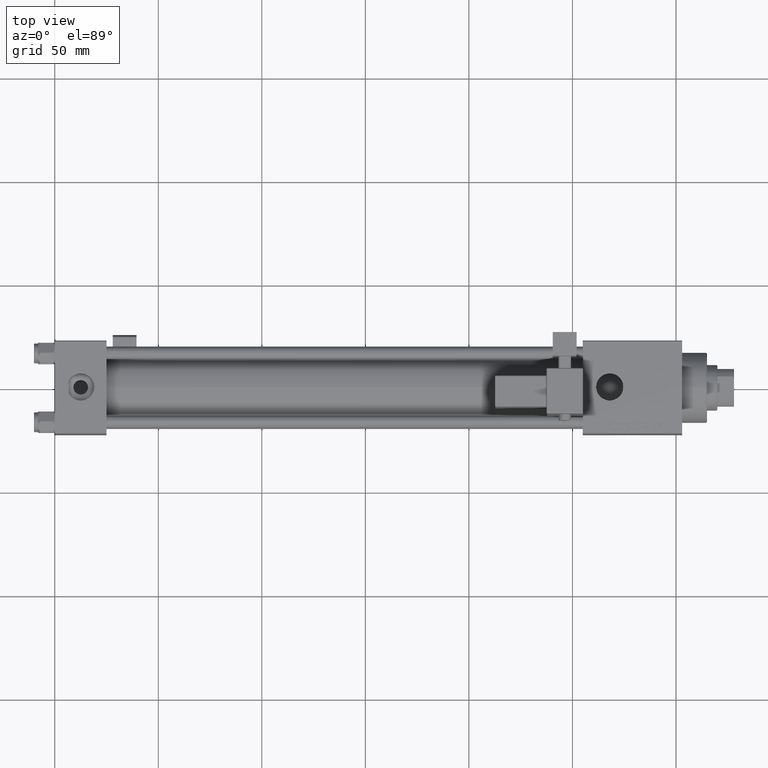
[diagram: clean part render]
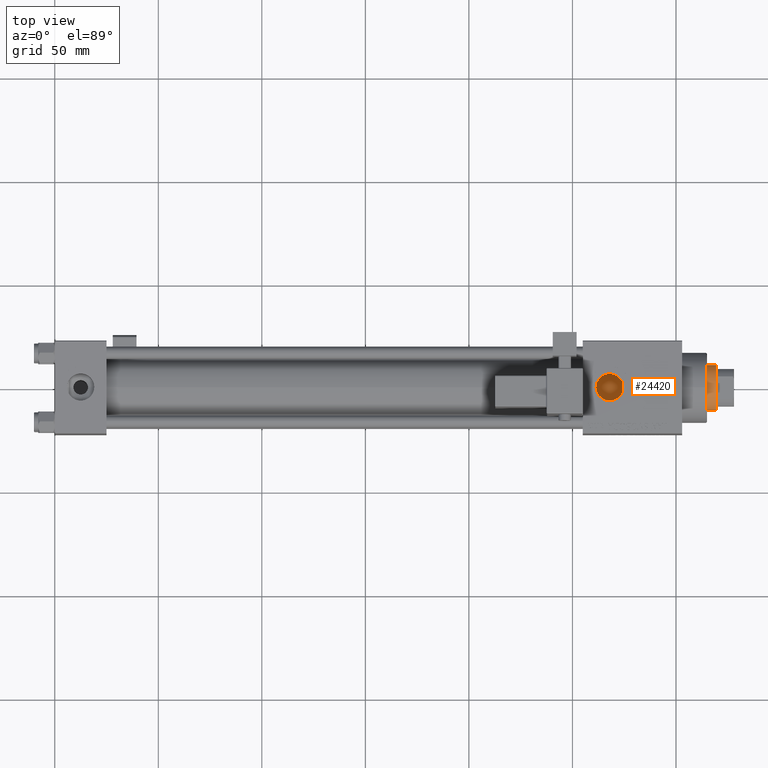
[diagram: same view with one face highlighted and labeled with its STEP entity id]
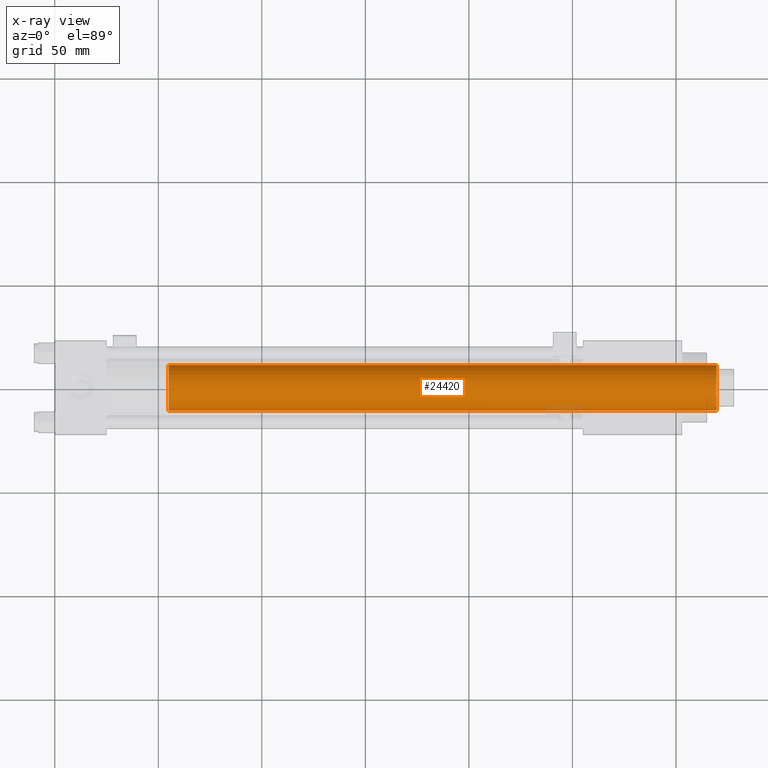
[diagram: x-ray of the same camera — body ghosted, the highlighted face saturated]
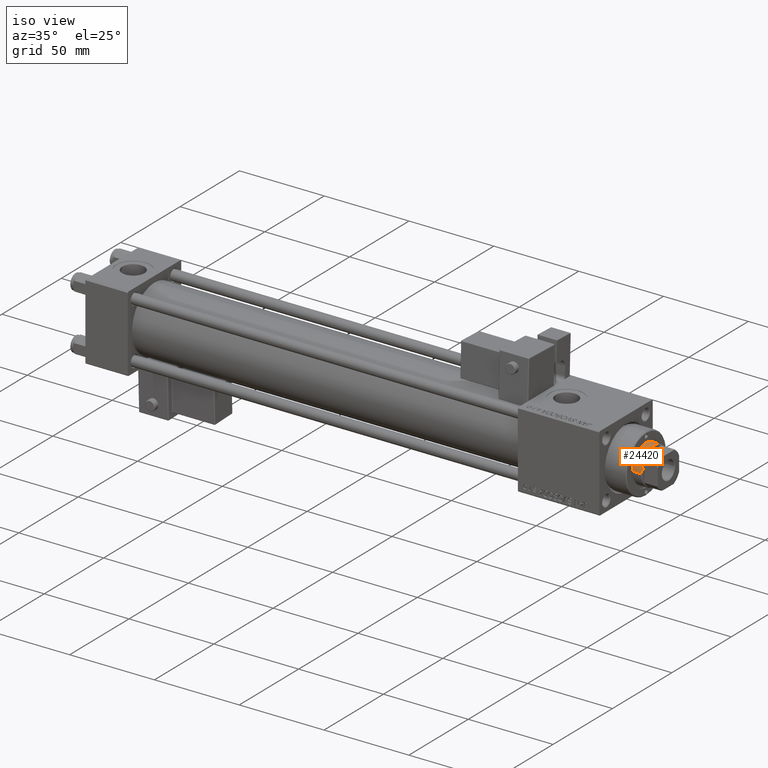
[diagram: same view with one face highlighted and labeled with its STEP entity id]
A machine part, top view. The second image highlights one B-rep face of the part: STEP entity #24420.
The next image is the same camera in x-ray: the body ghosted, the highlighted face saturated — about 1% of this face is hidden behind the body in this view.
A second angle (iso view) of the same face is appended — the face is thin or edge-on in the first view.
In plain terms, the highlighted cylindrical surface (edge-blend (fillet) strip) has radius 11 mm, axis along (-1, 0, 0).
Its self-contained STEP definition (entity closure, byte-faithful):
#1441 = CARTESIAN_POINT ( 'NONE',  ( 0.000000000000000000, 0.000000000000000000, 295.0000000000000568 ) ) ;
#2214 = LINE ( 'NONE', #40254, #34583 ) ;
#4587 = ORIENTED_EDGE ( 'NONE', *, *, #22865, .F. ) ;
#4828 = ORIENTED_EDGE ( 'NONE', *, *, #23106, .T. ) ;
#5796 = LINE ( 'NONE', #54259, #46601 ) ;
#6386 = CARTESIAN_POINT ( 'NONE',  ( 0.000000000000000000, 0.000000000000000000, 30.00000000000000000 ) ) ;
#6438 = CARTESIAN_POINT ( 'NONE',  ( 11.00000000000000000, 1.347111479062088405E-15, 294.5000000000001137 ) ) ;
#9556 = VERTEX_POINT ( 'NONE', #30098 ) ;
#12787 = ORIENTED_EDGE ( 'NONE', *, *, #14663, .T. ) ;
#14052 = DIRECTION ( 'NONE',  ( -0.000000000000000000, -0.000000000000000000, -1.000000000000000000 ) ) ;
#14663 = EDGE_CURVE ( 'NONE', #25294, #9556, #2214, .T. ) ;
#15147 = CIRCLE ( 'NONE', #50260, 11.00000000000000000 ) ;
#17285 = CARTESIAN_POINT ( 'NONE',  ( 0.000000000000000000, 0.000000000000000000, 294.5000000000001137 ) ) ;
#19467 = CYLINDRICAL_SURFACE ( 'NONE', #34071, 11.00000000000000000 ) ;
#21523 = DIRECTION ( 'NONE',  ( 1.000000000000000000, 0.000000000000000000, 0.000000000000000000 ) ) ;
#22730 = DIRECTION ( 'NONE',  ( 1.000000000000000000, 0.000000000000000000, 0.000000000000000000 ) ) ;
#22860 = FACE_OUTER_BOUND ( 'NONE', #37514, .T. ) ;
#22865 = EDGE_CURVE ( 'NONE', #48266, #39718, #5796, .T. ) ;
#23106 = EDGE_CURVE ( 'NONE', #48266, #25294, #15147, .T. ) ;
#23815 = DIRECTION ( 'NONE',  ( -0.000000000000000000, -0.000000000000000000, -1.000000000000000000 ) ) ;
#24420 = ADVANCED_FACE ( 'NONE', ( #22860 ), #19467, .T. ) ;
#25294 = VERTEX_POINT ( 'NONE', #31771 ) ;
#25408 = AXIS2_PLACEMENT_3D ( 'NONE', #6386, #44151, #22730 ) ;
#25761 = DIRECTION ( 'NONE',  ( 0.000000000000000000, 0.000000000000000000, -1.000000000000000000 ) ) ;
#30098 = CARTESIAN_POINT ( 'NONE',  ( -11.00000000000000000, 0.000000000000000000, 30.00000000000000000 ) ) ;
#31771 = CARTESIAN_POINT ( 'NONE',  ( -11.00000000000000000, 0.000000000000000000, 294.5000000000001137 ) ) ;
#34071 = AXIS2_PLACEMENT_3D ( 'NONE', #1441, #40045, #53869 ) ;
#34583 = VECTOR ( 'NONE', #14052, 1000.000000000000000 ) ;
#36329 = CARTESIAN_POINT ( 'NONE',  ( 11.00000000000000000, 1.347111479062088405E-15, 30.00000000000000000 ) ) ;
#37514 = EDGE_LOOP ( 'NONE', ( #4587, #4828, #12787, #40334 ) ) ;
#39718 = VERTEX_POINT ( 'NONE', #36329 ) ;
#40045 = DIRECTION ( 'NONE',  ( -0.000000000000000000, -0.000000000000000000, -1.000000000000000000 ) ) ;
#40254 = CARTESIAN_POINT ( 'NONE',  ( -11.00000000000000000, 0.000000000000000000, 295.0000000000000568 ) ) ;
#40334 = ORIENTED_EDGE ( 'NONE', *, *, #55604, .T. ) ;
#44151 = DIRECTION ( 'NONE',  ( 0.000000000000000000, 0.000000000000000000, 1.000000000000000000 ) ) ;
#46601 = VECTOR ( 'NONE', #23815, 1000.000000000000000 ) ;
#47021 = CIRCLE ( 'NONE', #25408, 11.00000000000000000 ) ;
#48266 = VERTEX_POINT ( 'NONE', #6438 ) ;
#50260 = AXIS2_PLACEMENT_3D ( 'NONE', #17285, #25761, #21523 ) ;
#53869 = DIRECTION ( 'NONE',  ( -1.000000000000000000, 0.000000000000000000, 0.000000000000000000 ) ) ;
#54259 = CARTESIAN_POINT ( 'NONE',  ( 11.00000000000000000, 1.347111479062088405E-15, 295.0000000000000568 ) ) ;
#55604 = EDGE_CURVE ( 'NONE', #9556, #39718, #47021, .T. ) ;